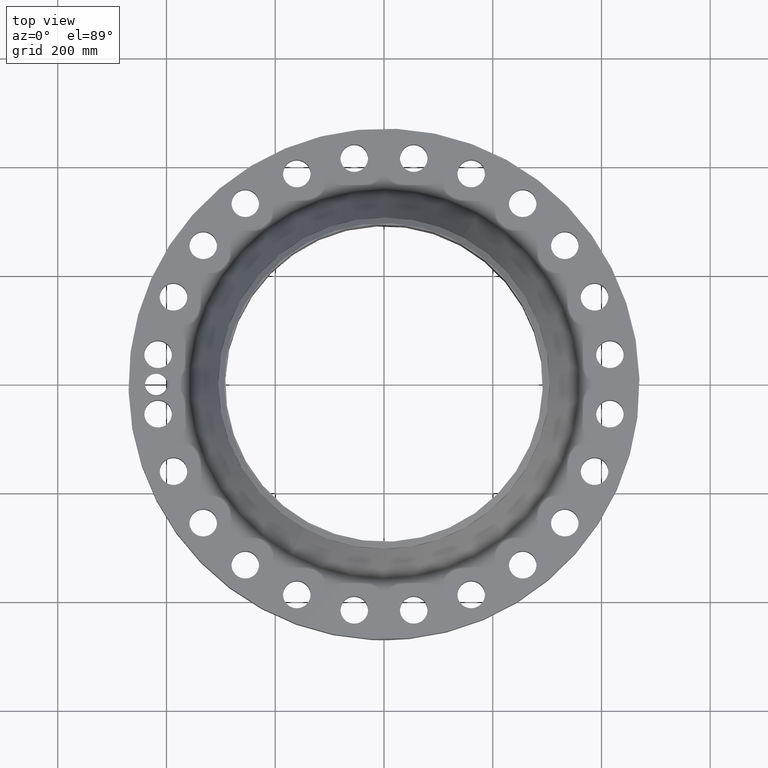
[diagram: clean part render]
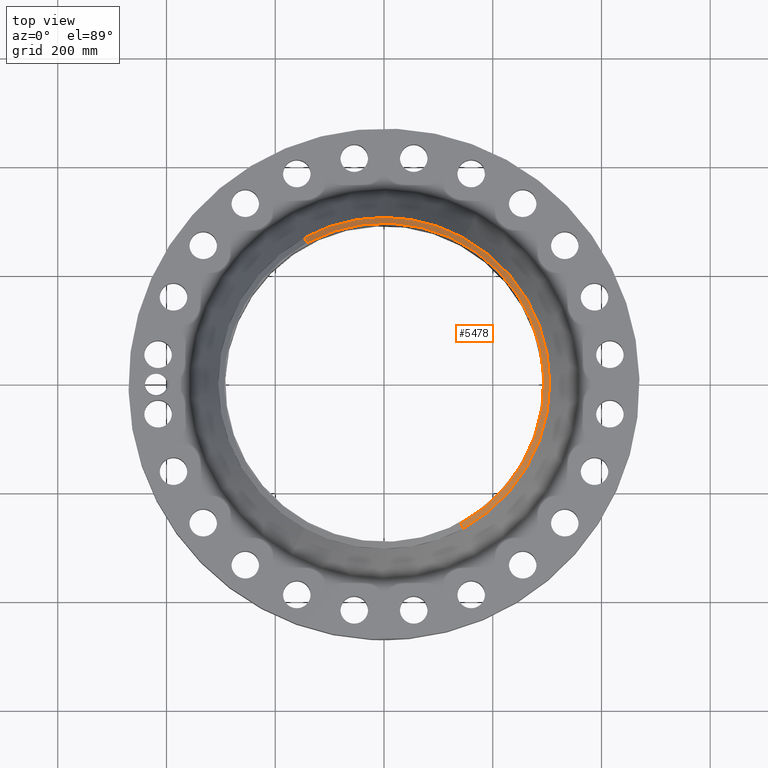
[diagram: same view with one face highlighted and labeled with its STEP entity id]
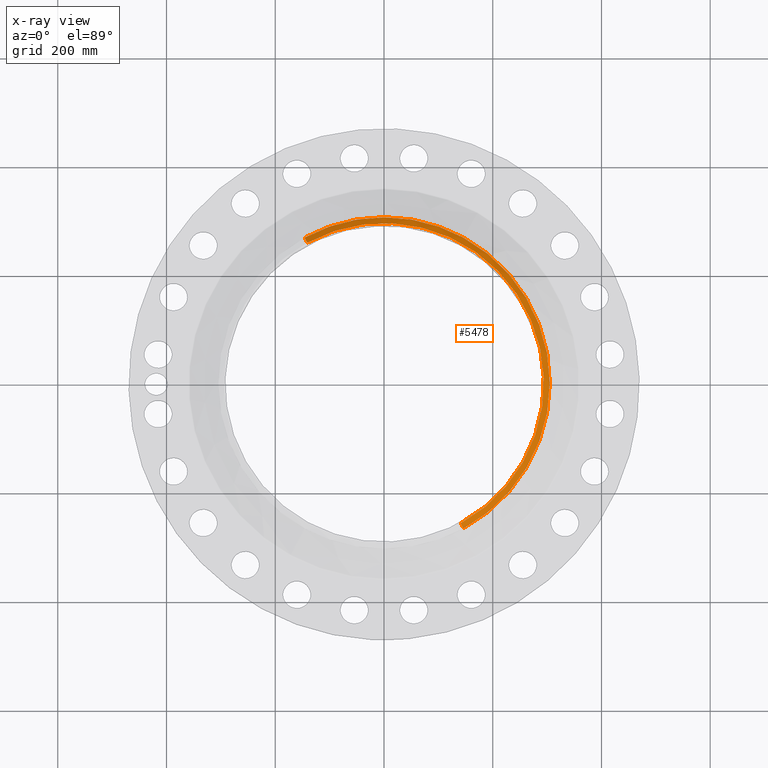
[diagram: x-ray of the same camera — body ghosted, the highlighted face saturated]
A machine part, top view. The second image highlights one B-rep face of the part: STEP entity #5478.
The next image is the same camera in x-ray: the body ghosted, the highlighted face saturated — about 0% of this face is hidden behind the body in this view.
In plain terms, the highlighted conical surface has half-angle 52.5 deg.
Its self-contained STEP definition (entity closure, byte-faithful):
#4278=AXIS2_PLACEMENT_3D('Circle Axis2P3D',#4276,#4277,$) ;
#4305=AXIS2_PLACEMENT_3D('Circle Axis2P3D',#4303,#4304,$) ;
#5091=AXIS2_PLACEMENT_3D('Circle Axis2P3D',#5089,#5090,$) ;
#5459=AXIS2_PLACEMENT_3D('Cone Axis2P3D',#5456,#5457,#5458) ;
#4273=CARTESIAN_POINT('Vertex',(5.75310646327,10.5309907427,7.92675595391)) ;
#4276=CARTESIAN_POINT('Axis2P3D Location',(0.,0.,7.92675595391)) ;
#4280=CARTESIAN_POINT('Vertex',(5.75310646327,-10.5309907427,7.92675595391)) ;
#4300=CARTESIAN_POINT('Vertex',(-5.75310646327,10.5309907427,7.92675595391)) ;
#4303=CARTESIAN_POINT('Axis2P3D Location',(0.,0.,7.92675595391)) ;
#5089=CARTESIAN_POINT('Axis2P3D Location',(0.,0.,8.25000000003)) ;
#5093=CARTESIAN_POINT('Vertex',(5.55114373638,-10.1613004509,8.25000000003)) ;
#5095=CARTESIAN_POINT('Vertex',(-5.55114373638,10.1613004509,8.25000000003)) ;
#5456=CARTESIAN_POINT('Axis2P3D Location',(0.,0.,8.25000000003)) ;
#5461=CARTESIAN_POINT('Line Origine',(-5.65212509983,10.3461455968,8.08837797697)) ;
#5466=CARTESIAN_POINT('Line Origine',(5.65212509983,-10.3461455968,8.08837797697)) ;
#4277=DIRECTION('Axis2P3D Direction',(0.,0.,-0.0393700787402)) ;
#4304=DIRECTION('Axis2P3D Direction',(0.,0.,-0.0393700787402)) ;
#5090=DIRECTION('Axis2P3D Direction',(0.,0.,-0.0393700787402)) ;
#5457=DIRECTION('Axis2P3D Direction',(-0.,-0.,-0.0393700787402)) ;
#5458=DIRECTION('Axis2P3D XDirection',(0.0188750212049,-0.0345504945626,0.)) ;
#5462=DIRECTION('Vector Direction',(-0.014974561121,0.02741075027,-0.023966985394)) ;
#5467=DIRECTION('Vector Direction',(0.014974561121,-0.02741075027,-0.023966985394)) ;
#5463=VECTOR('Line Direction',#5462,0.0393700787402) ;
#5468=VECTOR('Line Direction',#5467,0.0393700787402) ;
#5472=ORIENTED_EDGE('',*,*,#5465,.F.) ;
#5473=ORIENTED_EDGE('',*,*,#5097,.F.) ;
#5474=ORIENTED_EDGE('',*,*,#5470,.T.) ;
#5475=ORIENTED_EDGE('',*,*,#4282,.T.) ;
#5476=ORIENTED_EDGE('',*,*,#4307,.F.) ;
#5478=ADVANCED_FACE('PartBody',(#5477),#5460,.T.) ;
#4279=CIRCLE('generated circle',#4278,12.) ;
#4306=CIRCLE('generated circle',#4305,12.) ;
#5092=CIRCLE('generated circle',#5091,11.5787401575) ;
#5460=CONICAL_SURFACE('Cone',#5459,11.5787401575,0.916297857297) ;
#4282=EDGE_CURVE('',#4281,#4274,#4279,.F.) ;
#4307=EDGE_CURVE('',#4301,#4274,#4306,.T.) ;
#5097=EDGE_CURVE('',#5094,#5096,#5092,.F.) ;
#5465=EDGE_CURVE('',#5096,#4301,#5464,.T.) ;
#5470=EDGE_CURVE('',#5094,#4281,#5469,.T.) ;
#5471=EDGE_LOOP('',(#5472,#5473,#5474,#5475,#5476)) ;
#5477=FACE_OUTER_BOUND('',#5471,.T.) ;
#5464=LINE('Line',#5461,#5463) ;
#5469=LINE('Line',#5466,#5468) ;
#4274=VERTEX_POINT('',#4273) ;
#4281=VERTEX_POINT('',#4280) ;
#4301=VERTEX_POINT('',#4300) ;
#5094=VERTEX_POINT('',#5093) ;
#5096=VERTEX_POINT('',#5095) ;